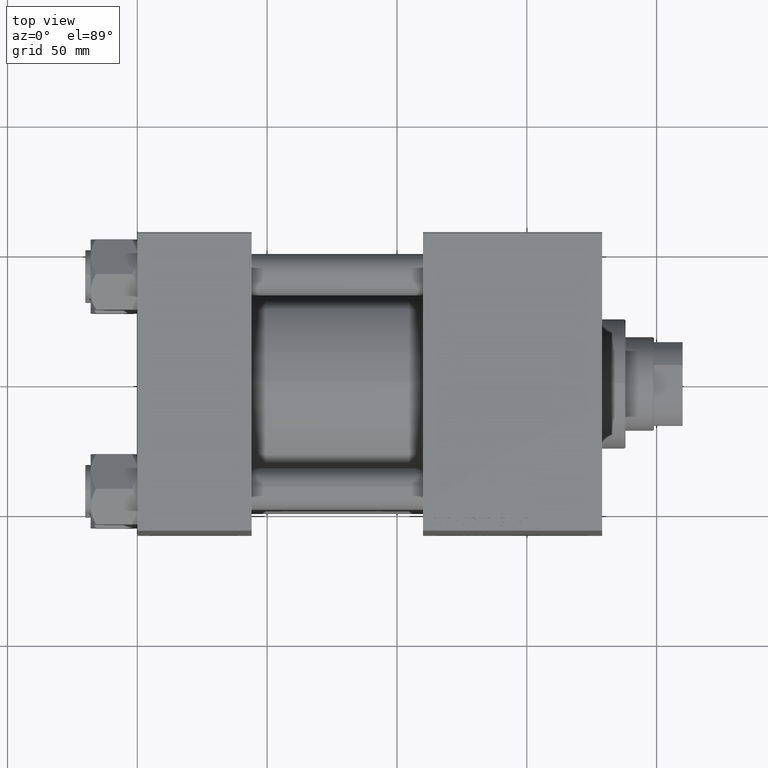
[diagram: clean part render]
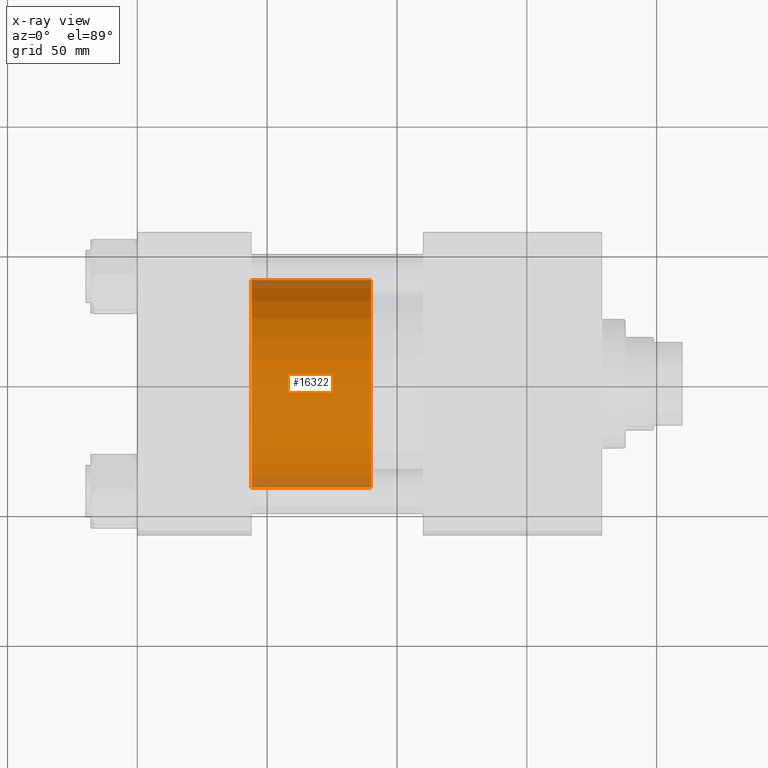
[diagram: x-ray — body ghosted, one internal face saturated and labeled with its STEP entity id]
A machine part, top view, then the same camera in x-ray: the body is ghosted and one INTERNAL B-rep face — a face not visible from any outside direction — is saturated and labeled: STEP entity #16322.
In plain terms, the highlighted cylindrical surface (partial cylindrical patch) has radius 40 mm, axis along (-1, 0, 0).
Its self-contained STEP definition (entity closure, byte-faithful):
#992 = AXIS2_PLACEMENT_3D ( 'NONE', #17828, #5546, #24514 ) ;
#1957 = DIRECTION ( 'NONE',  ( 0.000000000000000000, 0.000000000000000000, 1.000000000000000000 ) ) ;
#2477 = ORIENTED_EDGE ( 'NONE', *, *, #39038, .F. ) ;
#4409 = VECTOR ( 'NONE', #29417, 1000.000000000000000 ) ;
#5546 = DIRECTION ( 'NONE',  ( 0.000000000000000000, 0.000000000000000000, 1.000000000000000000 ) ) ;
#5850 = CYLINDRICAL_SURFACE ( 'NONE', #30622, 40.00000000000000000 ) ;
#5980 = ORIENTED_EDGE ( 'NONE', *, *, #29621, .T. ) ;
#6610 = FACE_OUTER_BOUND ( 'NONE', #49311, .T. ) ;
#8902 = ORIENTED_EDGE ( 'NONE', *, *, #39033, .T. ) ;
#9646 = DIRECTION ( 'NONE',  ( 1.000000000000000000, 0.000000000000000000, 0.000000000000000000 ) ) ;
#13787 = CARTESIAN_POINT ( 'NONE',  ( 40.00000000000000000, 4.898587196589413026E-15, 46.00000000000000000 ) ) ;
#14394 = LINE ( 'NONE', #49212, #43202 ) ;
#16322 = ADVANCED_FACE ( 'NONE', ( #6610 ), #5850, .T. ) ;
#16416 = EDGE_CURVE ( 'NONE', #30963, #26975, #33758, .T. ) ;
#17828 = CARTESIAN_POINT ( 'NONE',  ( 0.000000000000000000, 0.000000000000000000, 0.000000000000000000 ) ) ;
#20294 = CARTESIAN_POINT ( 'NONE',  ( -40.00000000000000000, 0.000000000000000000, 0.000000000000000000 ) ) ;
#21719 = CARTESIAN_POINT ( 'NONE',  ( 0.000000000000000000, 0.000000000000000000, 46.00000000000000000 ) ) ;
#22079 = DIRECTION ( 'NONE',  ( -0.000000000000000000, -0.000000000000000000, -1.000000000000000000 ) ) ;
#24514 = DIRECTION ( 'NONE',  ( 1.000000000000000000, 0.000000000000000000, 0.000000000000000000 ) ) ;
#26351 = AXIS2_PLACEMENT_3D ( 'NONE', #28613, #1957, #9646 ) ;
#26975 = VERTEX_POINT ( 'NONE', #45545 ) ;
#28207 = ORIENTED_EDGE ( 'NONE', *, *, #16416, .F. ) ;
#28477 = VERTEX_POINT ( 'NONE', #20294 ) ;
#28613 = CARTESIAN_POINT ( 'NONE',  ( 0.000000000000000000, 0.000000000000000000, 46.00000000000000000 ) ) ;
#28910 = DIRECTION ( 'NONE',  ( -1.000000000000000000, 0.000000000000000000, 0.000000000000000000 ) ) ;
#29417 = DIRECTION ( 'NONE',  ( -0.000000000000000000, -0.000000000000000000, -1.000000000000000000 ) ) ;
#29621 = EDGE_CURVE ( 'NONE', #33481, #28477, #14394, .T. ) ;
#29922 = DIRECTION ( 'NONE',  ( -0.000000000000000000, -0.000000000000000000, -1.000000000000000000 ) ) ;
#30457 = CIRCLE ( 'NONE', #992, 40.00000000000000000 ) ;
#30622 = AXIS2_PLACEMENT_3D ( 'NONE', #21719, #29922, #28910 ) ;
#30963 = VERTEX_POINT ( 'NONE', #41200 ) ;
#33481 = VERTEX_POINT ( 'NONE', #48271 ) ;
#33758 = LINE ( 'NONE', #13787, #4409 ) ;
#39033 = EDGE_CURVE ( 'NONE', #28477, #26975, #30457, .T. ) ;
#39038 = EDGE_CURVE ( 'NONE', #33481, #30963, #44329, .T. ) ;
#41200 = CARTESIAN_POINT ( 'NONE',  ( 40.00000000000000000, 4.898587196589413026E-15, 46.00000000000000000 ) ) ;
#43202 = VECTOR ( 'NONE', #22079, 1000.000000000000000 ) ;
#44329 = CIRCLE ( 'NONE', #26351, 40.00000000000000000 ) ;
#45545 = CARTESIAN_POINT ( 'NONE',  ( 40.00000000000000000, 4.898587196589413026E-15, 0.000000000000000000 ) ) ;
#48271 = CARTESIAN_POINT ( 'NONE',  ( -40.00000000000000000, 0.000000000000000000, 46.00000000000000000 ) ) ;
#49212 = CARTESIAN_POINT ( 'NONE',  ( -40.00000000000000000, 0.000000000000000000, 46.00000000000000000 ) ) ;
#49311 = EDGE_LOOP ( 'NONE', ( #28207, #2477, #5980, #8902 ) ) ;